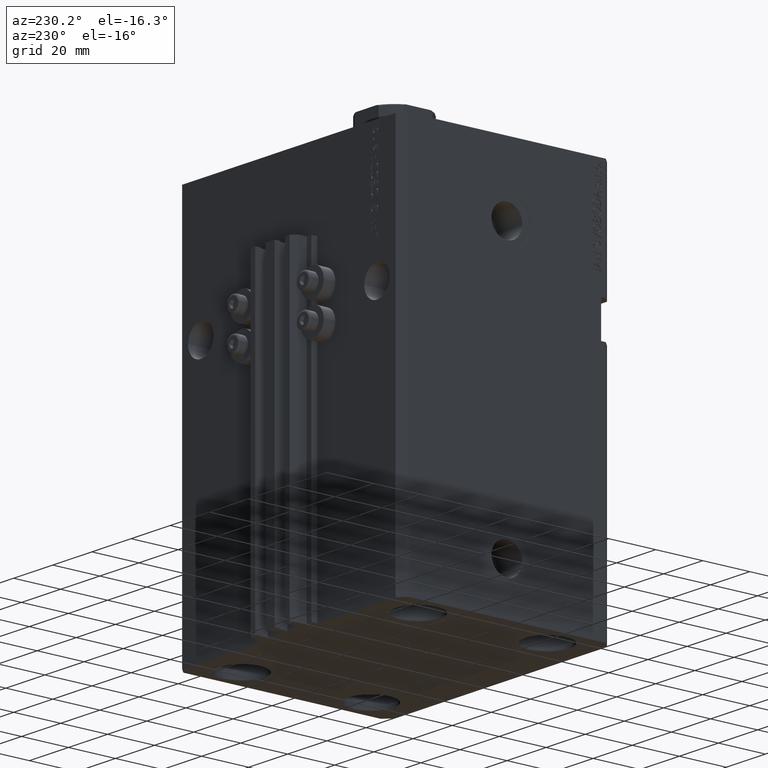
[diagram: clean part render]
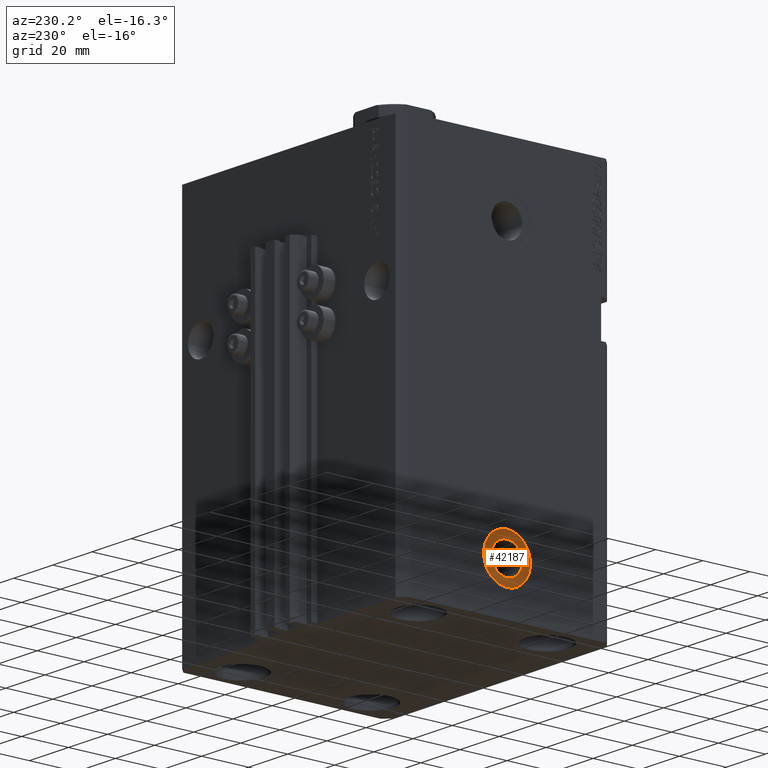
[diagram: same view with one face highlighted and labeled with its STEP entity id]
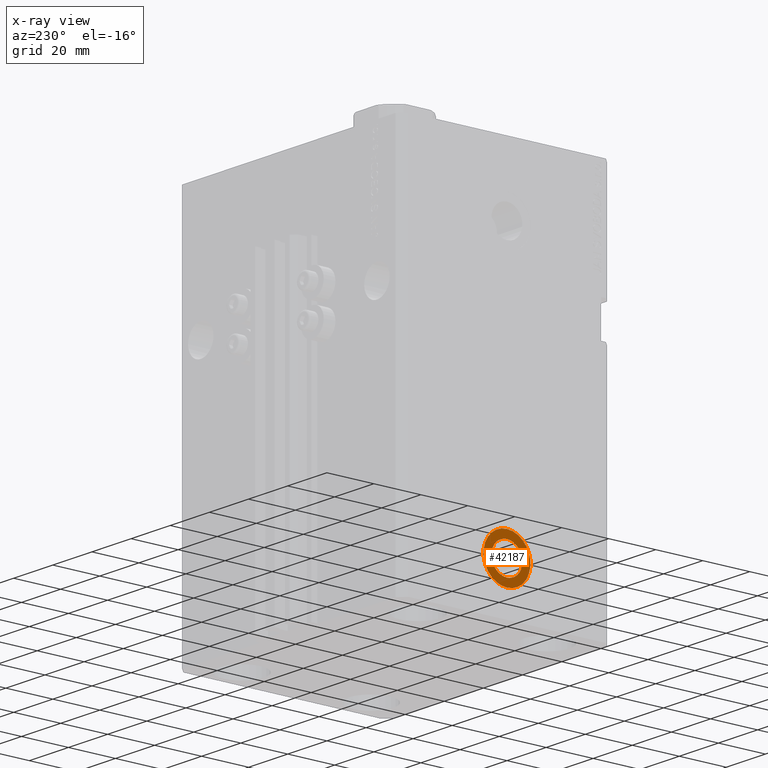
[diagram: x-ray of the same camera — body ghosted, the highlighted face saturated]
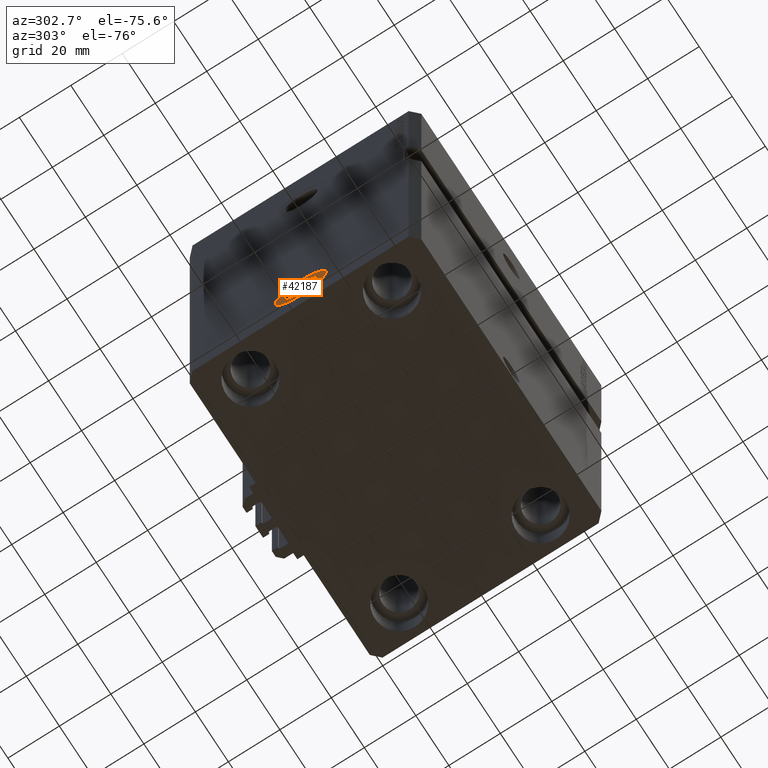
[diagram: same view with one face highlighted and labeled with its STEP entity id]
A machine part, auxiliary view. The second image highlights one B-rep face of the part: STEP entity #42187.
The next image is the same camera in x-ray: the body ghosted, the highlighted face saturated — about 0% of this face is hidden behind the body in this view.
A second angle (auxiliary view) of the same face is appended — the face is thin or edge-on in the first view.
In plain terms, the highlighted planar face has unit normal (-1, 0, 0).
Its self-contained STEP definition (entity closure, byte-faithful):
#619 = EDGE_CURVE ( 'NONE', #36079, #16970, #38903, .T. ) ;
#800 = FACE_BOUND ( 'NONE', #44921, .T. ) ;
#3046 = CARTESIAN_POINT ( 'NONE',  ( -57.39999999999999147, -3.385399640769547434E-15, -134.0000000000000000 ) ) ;
#4682 = DIRECTION ( 'NONE',  ( 0.000000000000000000, 0.000000000000000000, 1.000000000000000000 ) ) ;
#6771 = AXIS2_PLACEMENT_3D ( 'NONE', #39925, #20496, #43670 ) ;
#7307 = VERTEX_POINT ( 'NONE', #3046 ) ;
#7453 = AXIS2_PLACEMENT_3D ( 'NONE', #46009, #15636, #4682 ) ;
#8063 = DIRECTION ( 'NONE',  ( 0.000000000000000000, 0.000000000000000000, 1.000000000000000000 ) ) ;
#10639 = CIRCLE ( 'NONE', #7453, 10.00000000000000888 ) ;
#11311 = CARTESIAN_POINT ( 'NONE',  ( -57.39999999999999147, -3.385399640769547434E-15, -144.0000000000000284 ) ) ;
#11985 = DIRECTION ( 'NONE',  ( -1.000000000000000000, 0.000000000000000000, 0.000000000000000000 ) ) ;
#13175 = AXIS2_PLACEMENT_3D ( 'NONE', #18101, #24843, #36309 ) ;
#15636 = DIRECTION ( 'NONE',  ( -1.000000000000000000, 0.000000000000000000, 0.000000000000000000 ) ) ;
#15712 = FACE_OUTER_BOUND ( 'NONE', #47822, .T. ) ;
#16970 = VERTEX_POINT ( 'NONE', #30799 ) ;
#18101 = CARTESIAN_POINT ( 'NONE',  ( -57.39999999999999147, -3.385399640769547434E-15, -144.0000000000000284 ) ) ;
#19629 = ORIENTED_EDGE ( 'NONE', *, *, #42526, .T. ) ;
#20496 = DIRECTION ( 'NONE',  ( -1.000000000000000000, 0.000000000000000000, 0.000000000000000000 ) ) ;
#22454 = EDGE_CURVE ( 'NONE', #16970, #36079, #39395, .T. ) ;
#23432 = VERTEX_POINT ( 'NONE', #29186 ) ;
#24610 = AXIS2_PLACEMENT_3D ( 'NONE', #11311, #45163, #8063 ) ;
#24843 = DIRECTION ( 'NONE',  ( -1.000000000000000000, 0.000000000000000000, 0.000000000000000000 ) ) ;
#25011 = AXIS2_PLACEMENT_3D ( 'NONE', #46093, #11985, #38611 ) ;
#26116 = ORIENTED_EDGE ( 'NONE', *, *, #39376, .T. ) ;
#26609 = CIRCLE ( 'NONE', #6771, 10.00000000000000888 ) ;
#29186 = CARTESIAN_POINT ( 'NONE',  ( -57.39999999999999147, -2.160752841622193191E-15, -154.0000000000000284 ) ) ;
#30799 = CARTESIAN_POINT ( 'NONE',  ( -57.39999999999999147, -3.385399640769547434E-15, -137.4200000000000159 ) ) ;
#30886 = PLANE ( 'NONE',  #25011 ) ;
#32687 = ORIENTED_EDGE ( 'NONE', *, *, #22454, .F. ) ;
#36079 = VERTEX_POINT ( 'NONE', #37128 ) ;
#36309 = DIRECTION ( 'NONE',  ( 0.000000000000000000, 0.000000000000000000, 1.000000000000000000 ) ) ;
#37128 = CARTESIAN_POINT ( 'NONE',  ( -57.39999999999999147, -2.579582046930586025E-15, -150.5800000000000125 ) ) ;
#38611 = DIRECTION ( 'NONE',  ( 0.000000000000000000, 0.000000000000000000, 1.000000000000000000 ) ) ;
#38903 = CIRCLE ( 'NONE', #24610, 6.580000000000002736 ) ;
#39376 = EDGE_CURVE ( 'NONE', #7307, #23432, #10639, .T. ) ;
#39395 = CIRCLE ( 'NONE', #13175, 6.580000000000002736 ) ;
#39925 = CARTESIAN_POINT ( 'NONE',  ( -57.39999999999999147, -3.385399640769547434E-15, -144.0000000000000284 ) ) ;
#41338 = ORIENTED_EDGE ( 'NONE', *, *, #619, .F. ) ;
#42187 = ADVANCED_FACE ( 'NONE', ( #800, #15712 ), #30886, .T. ) ;
#42526 = EDGE_CURVE ( 'NONE', #23432, #7307, #26609, .T. ) ;
#43670 = DIRECTION ( 'NONE',  ( 0.000000000000000000, 0.000000000000000000, 1.000000000000000000 ) ) ;
#44921 = EDGE_LOOP ( 'NONE', ( #32687, #41338 ) ) ;
#45163 = DIRECTION ( 'NONE',  ( -1.000000000000000000, 0.000000000000000000, 0.000000000000000000 ) ) ;
#46009 = CARTESIAN_POINT ( 'NONE',  ( -57.39999999999999147, -3.385399640769547434E-15, -144.0000000000000284 ) ) ;
#46093 = CARTESIAN_POINT ( 'NONE',  ( -57.39999999999999147, -3.385399640769547434E-15, -144.0000000000000284 ) ) ;
#47822 = EDGE_LOOP ( 'NONE', ( #26116, #19629 ) ) ;